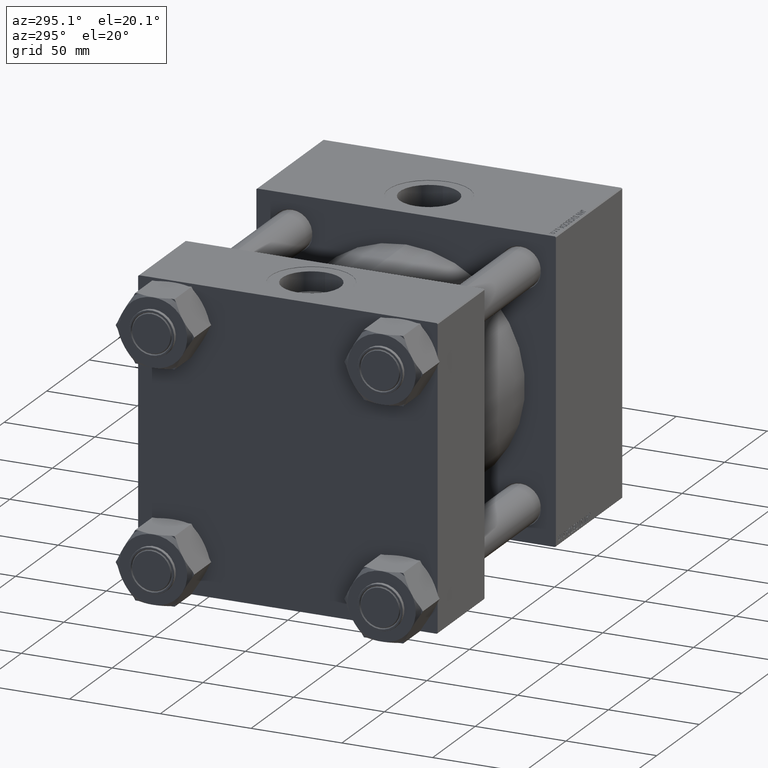
[diagram: clean part render]
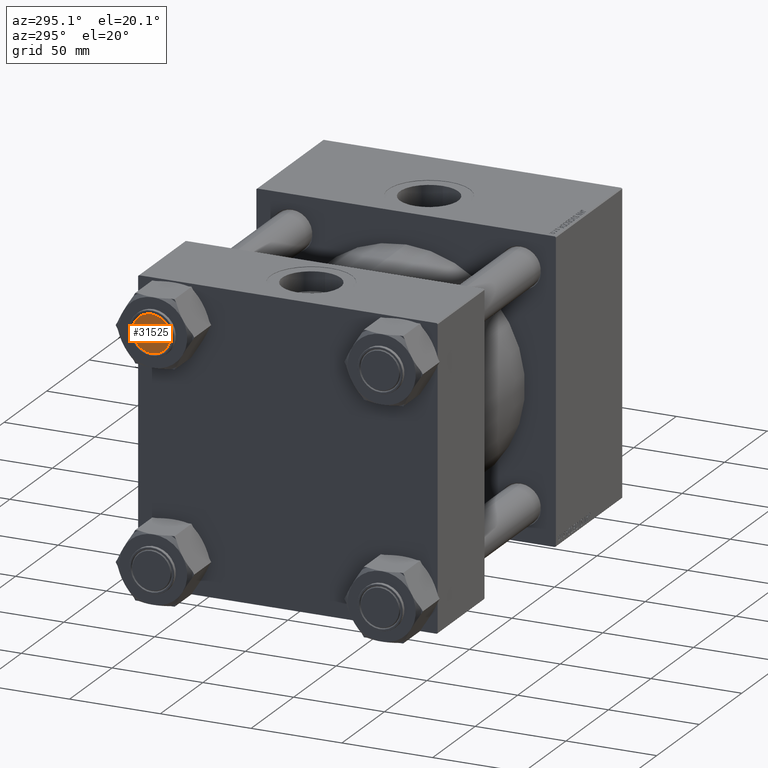
[diagram: same view with one face highlighted and labeled with its STEP entity id]
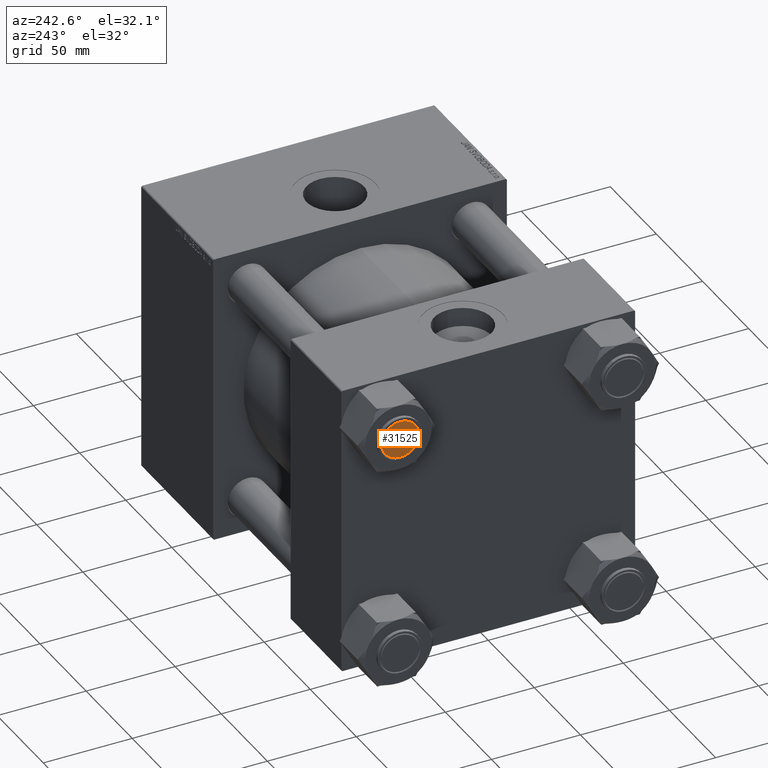
[diagram: same view with one face highlighted and labeled with its STEP entity id]
A machine part, auxiliary view. The second image highlights one B-rep face of the part: STEP entity #31525.
A second angle (auxiliary view) of the same face is appended — the face is thin or edge-on in the first view.
In plain terms, the highlighted planar face has unit normal (1, 0, 0).
Its self-contained STEP definition (entity closure, byte-faithful):
#2934 = EDGE_CURVE ( 'NONE', #19825, #19970, #21856, .T. ) ;
#4906 = PLANE ( 'NONE',  #31476 ) ;
#5136 = DIRECTION ( 'NONE',  ( 1.000000000000000000, 0.000000000000000000, 0.000000000000000000 ) ) ;
#8521 = CARTESIAN_POINT ( 'NONE',  ( 0.000000000000000000, 0.000000000000000000, 0.000000000000000000 ) ) ;
#17527 = DIRECTION ( 'NONE',  ( -0.000000000000000000, -0.000000000000000000, -1.000000000000000000 ) ) ;
#19825 = VERTEX_POINT ( 'NONE', #43215 ) ;
#19970 = VERTEX_POINT ( 'NONE', #46456 ) ;
#21856 = CIRCLE ( 'NONE', #39068, 10.49999999999985434 ) ;
#27876 = ORIENTED_EDGE ( 'NONE', *, *, #29741, .T. ) ;
#29082 = DIRECTION ( 'NONE',  ( 1.000000000000000000, 0.000000000000000000, 0.000000000000000000 ) ) ;
#29309 = EDGE_LOOP ( 'NONE', ( #27876, #46907 ) ) ;
#29741 = EDGE_CURVE ( 'NONE', #19970, #19825, #38694, .T. ) ;
#31373 = DIRECTION ( 'NONE',  ( 0.000000000000000000, 0.000000000000000000, 1.000000000000000000 ) ) ;
#31476 = AXIS2_PLACEMENT_3D ( 'NONE', #8521, #31373, #31880 ) ;
#31525 = ADVANCED_FACE ( 'NONE', ( #31628 ), #4906, .F. ) ;
#31628 = FACE_OUTER_BOUND ( 'NONE', #29309, .T. ) ;
#31880 = DIRECTION ( 'NONE',  ( 1.000000000000000000, 0.000000000000000000, -0.000000000000000000 ) ) ;
#34997 = CARTESIAN_POINT ( 'NONE',  ( 0.000000000000000000, 0.000000000000000000, 0.000000000000000000 ) ) ;
#38694 = CIRCLE ( 'NONE', #44471, 10.49999999999985434 ) ;
#39068 = AXIS2_PLACEMENT_3D ( 'NONE', #45242, #17527, #29082 ) ;
#42949 = DIRECTION ( 'NONE',  ( -0.000000000000000000, -0.000000000000000000, -1.000000000000000000 ) ) ;
#43215 = CARTESIAN_POINT ( 'NONE',  ( -10.49999999999985434, 1.316495309083395743E-15, 0.000000000000000000 ) ) ;
#44471 = AXIS2_PLACEMENT_3D ( 'NONE', #34997, #42949, #5136 ) ;
#45242 = CARTESIAN_POINT ( 'NONE',  ( 0.000000000000000000, 0.000000000000000000, 0.000000000000000000 ) ) ;
#46456 = CARTESIAN_POINT ( 'NONE',  ( 10.49999999999985434, 0.000000000000000000, 0.000000000000000000 ) ) ;
#46907 = ORIENTED_EDGE ( 'NONE', *, *, #2934, .T. ) ;